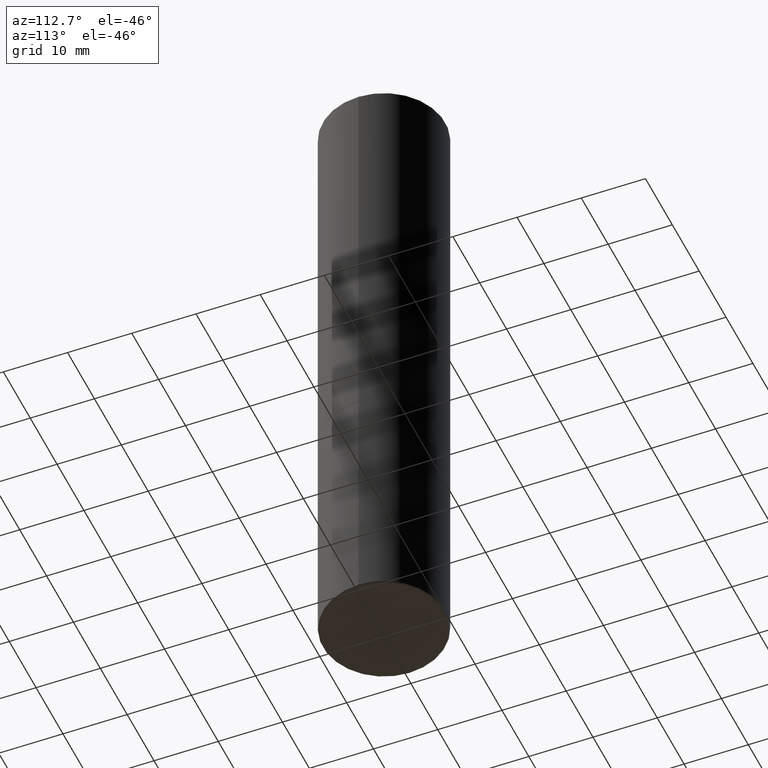
[diagram: clean part render]
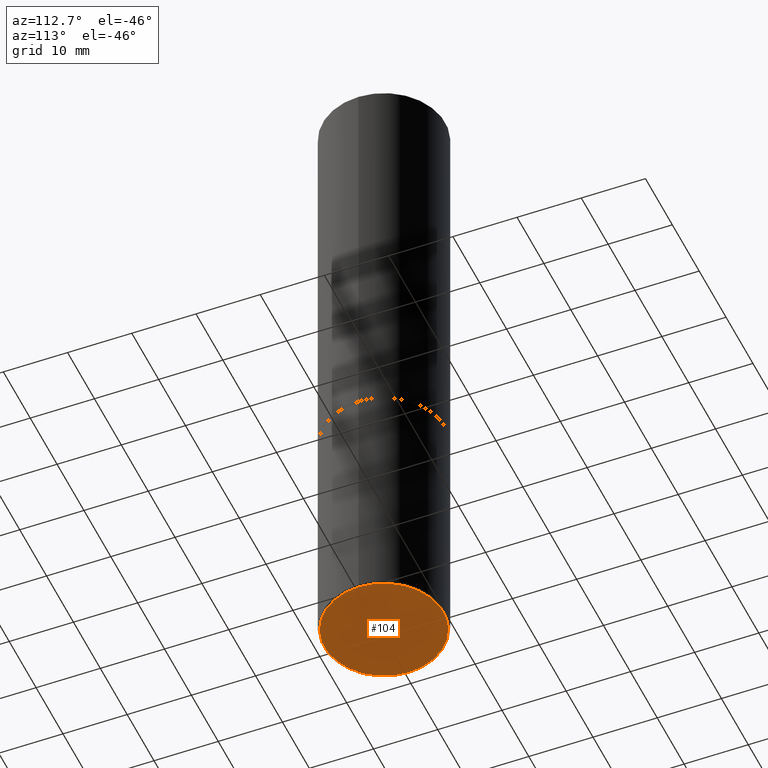
[diagram: same view with one face highlighted and labeled with its STEP entity id]
A machine part, auxiliary view. The second image highlights one B-rep face of the part: STEP entity #104.
In plain terms, the highlighted planar face has unit normal (0, -0, -1).
Its self-contained STEP definition (entity closure, byte-faithful):
#44 = EDGE_CURVE ( 'NONE', #267, #240, #116, .T. ) ;
#58 = CARTESIAN_POINT ( 'NONE',  ( 0.3649999999999999356, -1.651470673272807063E-14, -4.000000000000000000 ) ) ;
#63 = AXIS2_PLACEMENT_3D ( 'NONE', #136, #389, #255 ) ;
#94 = DIRECTION ( 'NONE',  ( -2.445468806185136597E-29, 3.491481338843145583E-15, 1.000000000000000000 ) ) ;
#97 = ORIENTED_EDGE ( 'NONE', *, *, #44, .F. ) ;
#104 = ADVANCED_FACE ( 'NONE', ( #142 ), #378, .T. ) ;
#116 = CIRCLE ( 'NONE', #415, 0.3649999999999999356 ) ;
#136 = CARTESIAN_POINT ( 'NONE',  ( 9.781875224740546387E-29, -1.396592535537258233E-14, -4.000000000000000000 ) ) ;
#139 = DIRECTION ( 'NONE',  ( 1.000000000000000000, -6.982962677686267499E-15, 0.000000000000000000 ) ) ;
#142 = FACE_OUTER_BOUND ( 'NONE', #233, .T. ) ;
#153 = ORIENTED_EDGE ( 'NONE', *, *, #342, .F. ) ;
#195 = CIRCLE ( 'NONE', #279, 0.3649999999999999356 ) ;
#221 = CARTESIAN_POINT ( 'NONE',  ( -0.3649999999999999356, -1.131945982636599743E-14, -4.000000000000000000 ) ) ;
#227 = CARTESIAN_POINT ( 'NONE',  ( 9.781875224740546387E-29, -1.396592535537258233E-14, -4.000000000000000000 ) ) ;
#233 = EDGE_LOOP ( 'NONE', ( #97, #153 ) ) ;
#240 = VERTEX_POINT ( 'NONE', #221 ) ;
#255 = DIRECTION ( 'NONE',  ( -1.000000000000000000, 6.982962677686265922E-15, -4.876176775795935793E-29 ) ) ;
#267 = VERTEX_POINT ( 'NONE', #58 ) ;
#279 = AXIS2_PLACEMENT_3D ( 'NONE', #317, #283, #139 ) ;
#283 = DIRECTION ( 'NONE',  ( -2.445468806185136597E-29, 3.491481338843145583E-15, 1.000000000000000000 ) ) ;
#309 = DIRECTION ( 'NONE',  ( 1.000000000000000000, -6.982962677686267499E-15, 0.000000000000000000 ) ) ;
#317 = CARTESIAN_POINT ( 'NONE',  ( 9.781875224740546387E-29, -1.396592535537258233E-14, -4.000000000000000000 ) ) ;
#342 = EDGE_CURVE ( 'NONE', #240, #267, #195, .T. ) ;
#378 = PLANE ( 'NONE',  #63 ) ;
#389 = DIRECTION ( 'NONE',  ( 2.438088387897960049E-29, -3.491481338843145188E-15, -1.000000000000000000 ) ) ;
#415 = AXIS2_PLACEMENT_3D ( 'NONE', #227, #94, #309 ) ;